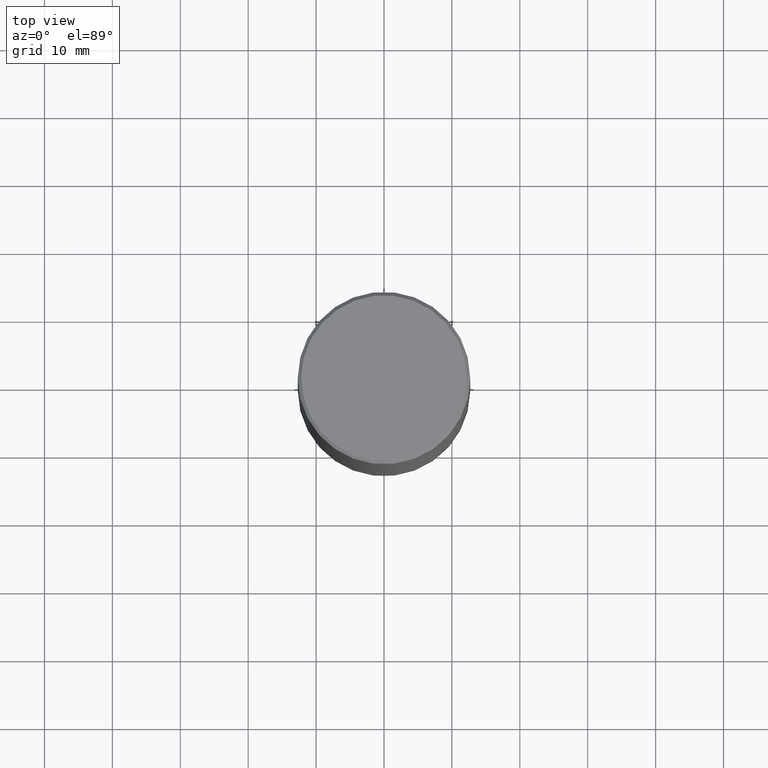
[diagram: clean part render]
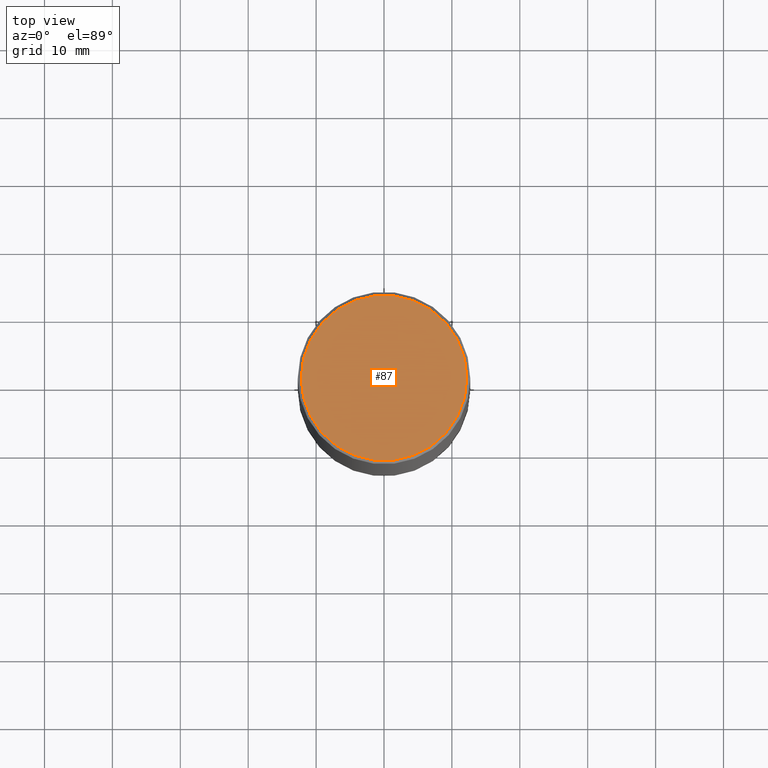
[diagram: same view with one face highlighted and labeled with its STEP entity id]
A machine part, top view. The second image highlights one B-rep face of the part: STEP entity #87.
In plain terms, the highlighted planar face has unit normal (0, -0, -1).
Its self-contained STEP definition (entity closure, byte-faithful):
#2 = AXIS2_PLACEMENT_3D ( 'NONE', #195, #164, #320 ) ;
#60 = CARTESIAN_POINT ( 'NONE',  ( 3.351822085289404787E-15, 0.4799999999999995937, -1.669508273909557867E-15 ) ) ;
#81 = CIRCLE ( 'NONE', #295, 0.4799999999999995937 ) ;
#87 = ADVANCED_FACE ( 'NONE', ( #204 ), #384, .F. ) ;
#93 = CARTESIAN_POINT ( 'NONE',  ( 0.4799999999999995937, -3.396558832296479338E-15, 1.280553747032483033E-17 ) ) ;
#135 = EDGE_LOOP ( 'NONE', ( #178, #188 ) ) ;
#144 = DIRECTION ( 'NONE',  ( -1.000000000000000000, 6.982962677686265922E-15, -4.876176775795935793E-29 ) ) ;
#154 = CARTESIAN_POINT ( 'NONE',  ( -0.4799999999999995937, 3.386736898677836436E-15, 1.280553747027767124E-17 ) ) ;
#164 = DIRECTION ( 'NONE',  ( -2.445468806185136597E-29, 3.491481338843145583E-15, 1.000000000000000000 ) ) ;
#178 = ORIENTED_EDGE ( 'NONE', *, *, #388, .T. ) ;
#188 = ORIENTED_EDGE ( 'NONE', *, *, #205, .T. ) ;
#195 = CARTESIAN_POINT ( 'NONE',  ( -3.131554243005659264E-46, 4.471029511141341874E-32, 1.280553747030123384E-17 ) ) ;
#201 = CIRCLE ( 'NONE', #2, 0.4799999999999995937 ) ;
#202 = DIRECTION ( 'NONE',  ( 2.438088387897960049E-29, -3.491481338843145188E-15, -1.000000000000000000 ) ) ;
#204 = FACE_OUTER_BOUND ( 'NONE', #135, .T. ) ;
#205 = EDGE_CURVE ( 'NONE', #244, #300, #81, .T. ) ;
#244 = VERTEX_POINT ( 'NONE', #93 ) ;
#295 = AXIS2_PLACEMENT_3D ( 'NONE', #329, #327, #302 ) ;
#300 = VERTEX_POINT ( 'NONE', #154 ) ;
#302 = DIRECTION ( 'NONE',  ( 1.000000000000000000, -6.982962677686266711E-15, 4.876036955247133327E-29 ) ) ;
#314 = AXIS2_PLACEMENT_3D ( 'NONE', #60, #202, #144 ) ;
#320 = DIRECTION ( 'NONE',  ( 1.000000000000000000, -6.982962677686266711E-15, 4.876036955247133327E-29 ) ) ;
#327 = DIRECTION ( 'NONE',  ( -2.445468806185136597E-29, 3.491481338843145583E-15, 1.000000000000000000 ) ) ;
#329 = CARTESIAN_POINT ( 'NONE',  ( -3.131554243005659264E-46, 4.471029511141341874E-32, 1.280553747030123384E-17 ) ) ;
#384 = PLANE ( 'NONE',  #314 ) ;
#388 = EDGE_CURVE ( 'NONE', #300, #244, #201, .T. ) ;